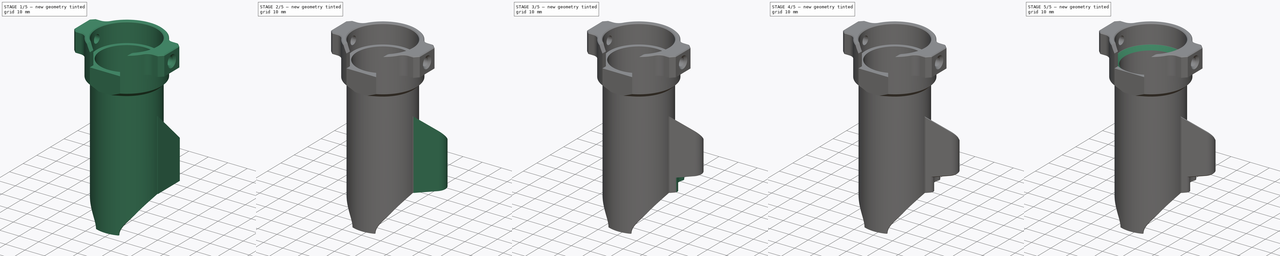
[diagram: build sequence overview — one tinted view per stage of 5, left to right]
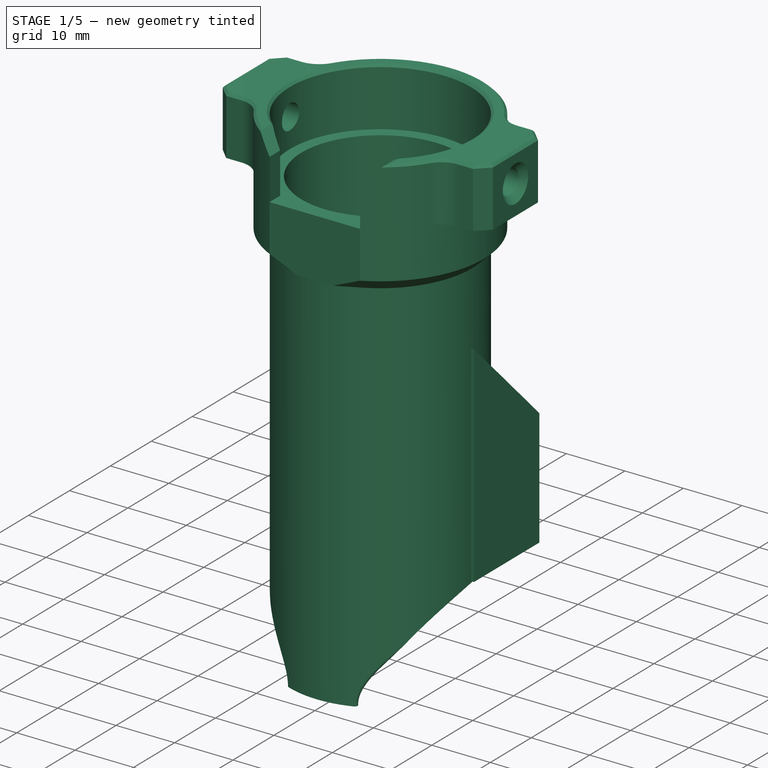
[diagram: stage 1 of 5 — iso view after this stage's code; geometry added in this stage tinted green]
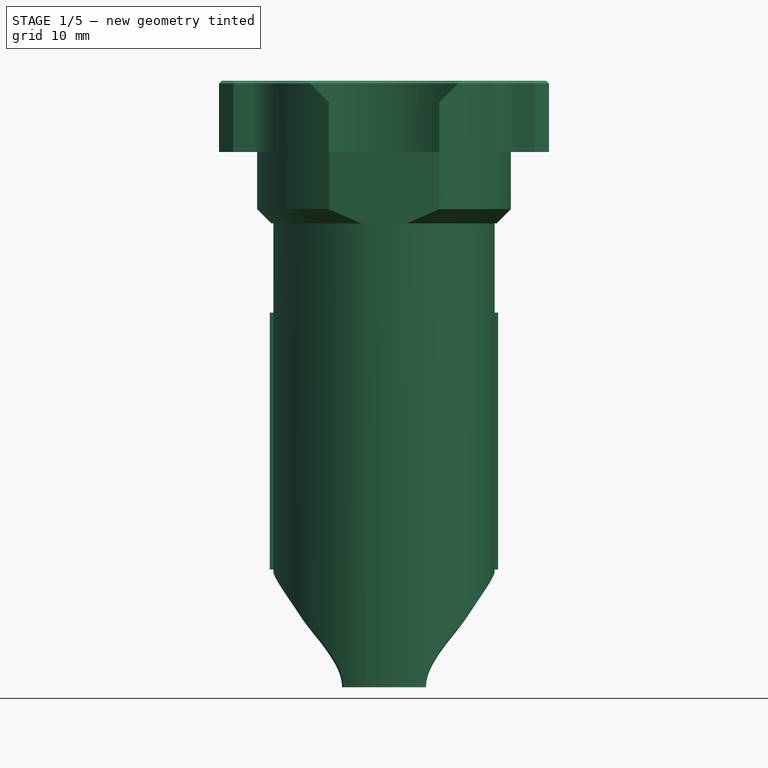
[diagram: stage 1 of 5 — front view after this stage's code; geometry added in this stage tinted green]
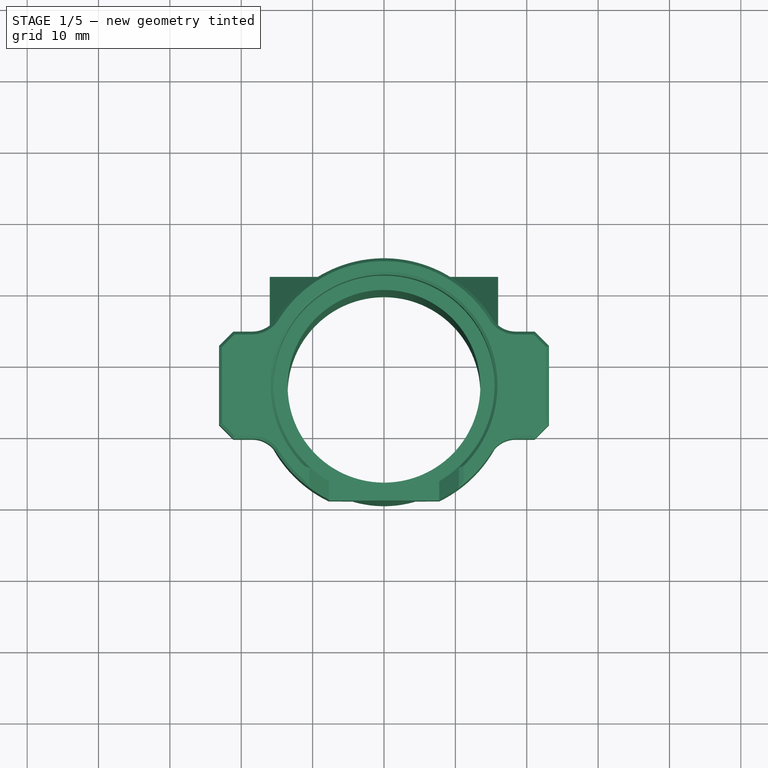
[diagram: stage 1 of 5 — top view after this stage's code; geometry added in this stage tinted green]
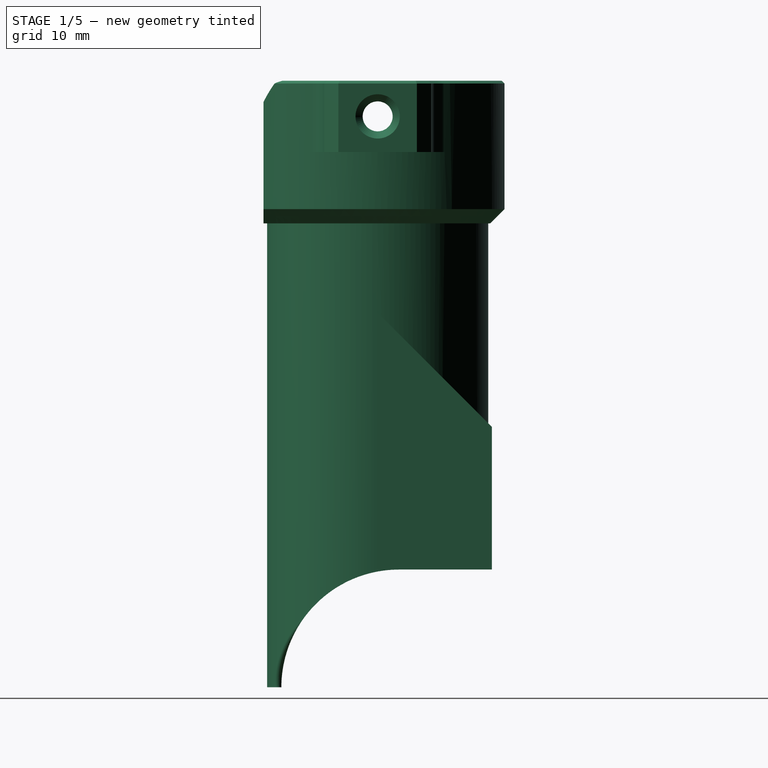
[diagram: stage 1 of 5 — right view after this stage's code; geometry added in this stage tinted green]
FCSTD DOCUMENT  (FreeCAD 2023.131R26244 +5365 (Git))
Label: ball-actuator
License: Creative Commons Attribution-NoDerivatives
LicenseURL: http://creativecommons.org/licenses/by-nd/4.0/
objects: Part::Feature×11, PartDesign::Chamfer×6, Sketcher::SketchObject×5, App::Part×3, PartDesign::Pocket×3, PartDesign::Draft×3, PartDesign::Pad×2, PartDesign::Fillet×2, PartDesign::SubShapeBinder×1, PartDesign::Mirrored×1, PartDesign::Body×1
note: 74 computed .brp shape members not serialized (recipe doc carries the construction recipe); baked Part::Feature solids carry a one-line shape summary decoded from their .brp

FEATURE [Part::Feature] Part__Feature  label="CarterVac"
  InvalidShape = false
  TreeRank = 91
  ValidateShape = true
  shape: bbox 80 x 3 x 200 mm, 74 faces (baked)
FEATURE [Part::Feature] Part__Feature001  label="TubeInterne"
  InvalidShape = false
  TreeRank = 92
  ValidateShape = true
  shape: bbox 61.94 x 98.3 x 192.5 mm, 124 faces (baked)
FEATURE [Part::Feature] Part__Feature002  label="TubeExterne"
  InvalidShape = false
  TreeRank = 93
  ValidateShape = true
  shape: bbox 60.03 x 49.48 x 124.4 mm, 102 faces (baked)
FEATURE [Part::Feature] Part__Feature003  label="TubeEntree"
  InvalidShape = false
  TreeRank = 94
  ValidateShape = true
  shape: bbox 46.24 x 35.58 x 86.23 mm, 62 faces (baked)
FEATURE [Part::Feature] Part__Feature004  label="SpacerTurbine"
  InvalidShape = false
  TreeRank = 95
  ValidateShape = true
  shape: bbox 45 x 10 x 45 mm, 41 faces (baked)
FEATURE [Part::Feature] Part__Feature005  label="CacheTurbine"
  InvalidShape = false
  TreeRank = 96
  ValidateShape = true
  shape: bbox 45 x 3 x 45 mm, 30 faces (baked)
FEATURE [Part::Feature] Part__Feature006  label="LamelleTurbine"
  InvalidShape = false
  TreeRank = 97
  ValidateShape = true
  shape: bbox 50 x 4.8 x 2.1 mm, 10 faces (baked)
FEATURE [Part::Feature] Part__Feature007  label="Trappe"
  InvalidShape = false
  Placement = pos=(0,28.35,194.28) rot=(0,0,1;0rad)
  TreeRank = 98
  ValidateShape = true
  shape: bbox 60.05 x 16.85 x 35.16 mm, 48 faces (baked)
FEATURE [Part::Feature] Part__Feature008  label="ServoArm"
  InvalidShape = false
  TreeRank = 99
  ValidateShape = true
  shape: bbox 4 x 21.5 x 6.9 mm, 11 faces (baked)
FEATURE [Part::Feature] Part__Feature009  label="BigServoArm"
  InvalidShape = false
  TreeRank = 100
  ValidateShape = true
  shape: bbox 4 x 30.59 x 10.9 mm, 28 faces (baked)
FEATURE [Part::Feature] Part__Feature010  label="ArmLink"
  InvalidShape = false
  Placement = pos=(5.3e-15,21.65,6.0174e-12) rot=(-1,0,0;1.39626rad)
  TreeRank = 101
  ValidateShape = true
  shape: bbox 3 x 12.56 x 38.51 mm, 11 faces (baked)
FEATURE [App::Part] EnsembleServoArm
  ClaimAllChildren = false
  ExportMode = 1
  Group = -> [Part__Feature008,Part__Feature009,Part__Feature010]
  Origin = -> Origin003
  Placement = pos=(15.7,12.1227,220.996) rot=(0,0,1;0rad)
  TreeRank = 103
  _ExportChildren = -> [Part__Feature008,Part__Feature009,Part__Feature010]
  _GroupVersion = 1
FEATURE [App::Part] EnsembleServo
  ClaimAllChildren = false
  ExportMode = 1
  Group = -> [EnsembleServoArm]
  Origin = -> Origin004
  Placement = pos=(-7.4,-2.86102e-07,-2.84e-14) rot=(0,0,1;0rad)
  TreeRank = 105
  _ExportChildren = -> [EnsembleServoArm]
  _GroupVersion = 1
FEATURE [PartDesign::SubShapeBinder] BaseFeature  label="BaseFeature(TubeEntree)"
  BindCopyOnChange = 0
  BindMode = 0
  ClaimChildren = false
  Context = -> BallActionneur [Body.BaseFeature.]
  EdgeTolerance = 1e-06
  FillStyle = 0
  Fuse = true
  InvalidShape = false
  MakeFace = true
  MergeEdges = true
  OffsetFill = false
  OffsetIntersection = false
  OffsetJoinType = 0
  OffsetOpenResult = false
  Outline = false
  PartialLoad = false
  Relative = true
  SplitEdges = false
  Support = -> [Part__Feature003]
  TightBound = false
  TreeRank = 143
  ValidateShape = true
  _Version = 8
FEATURE [Sketcher::SketchObject] Sketch
  ArcFitTolerance = 1e-06
  AttachmentSupport = -> [YZ_Plane]
  ExternalBSplineMaxDegree = 5
  ExternalBSplineTolerance = 0.0001
  ExternalGeometry = -> [BaseFeature]
  FullyConstrained = true
  InternalTolerance = 1e-06
  InvalidShape = false
  MakeInternals = true
  MapMode = 5
  Placement = pos=(0,0,0) rot=(0.57735,0.57735,0.57735;2.0944rad)
  Support = -> [YZ_Plane]
  TreeRank = 144
  ValidateShape = true
  sketch-geometry (8):
    g0: LineSegment [constr] StartX=-1.4508e-12 StartY=52.5 StartZ=0 EndX=33 EndY=52.5 EndZ=0
    g1: LineSegment StartX=33 StartY=52.5 StartZ=0 EndX=33 EndY=22.5 EndZ=0
    g2: LineSegment StartX=33 StartY=22.5 StartZ=0 EndX=-1.4495e-12 EndY=22.5 EndZ=0
    g3: LineSegment [constr] StartX=-1.4508e-12 StartY=22.5 StartZ=0 EndX=-1.4508e-12 EndY=52.5 EndZ=0
    g4: LineSegment StartX=33 StartY=52.5 StartZ=0 EndX=19 EndY=52.5 EndZ=0
    g5: ArcOfCircle CenterX=19 CenterY=36 CenterZ=0 NormalX=0 NormalY=0 NormalZ=1 AngleXU=0 Radius=16.5 StartAngle=1.5708 EndAngle=3.14159
    g6: LineSegment StartX=2.5 StartY=36 StartZ=0 EndX=8.966e-13 EndY=36 EndZ=0
    g7: LineSegment StartX=8.966e-13 StartY=36 StartZ=0 EndX=-1.4508e-12 EndY=22.5 EndZ=0
  constraints (22):
    c: Coincident(g0,g1)
    c: Coincident(g1,g2)
    c: Coincident(g2,g3)
    c: Coincident(g3,g0)
    c: Horizontal(g0)
    c: Horizontal(g2)
    c: Vertical(g1)
    c: Vertical(g3)
    c: PointOnObject(g0,g-2)
    c: DistanceY(g-1,g0) = 52.5
    c: DistanceX(g1) = 33
    c: DistanceY(g1,g1) = 30
    c: Coincident(g4,g1)
    c: PointOnObject(g4,g0)
    c: Tangent(g5,g4) = -1.5708
    c: Coincident(g6,g5)
    c: PointOnObject(g6,g3)
    c: Coincident(g7,g6)
    c: Coincident(g7,g2)
    c: Horizontal(g6)
    c: Perpendicular(g5,g6)
    c: Coincident(g-3,g5)
FEATURE [PartDesign::Pocket] Pocket
  AddSubType = 1
  AutoTaperInnerAngle = true
  BaseFeature = -> BaseFeature
  CheckUpToFaceLimits = true
  ClaimChildren = false
  Fit = 0
  FitJoin = 0
  InnerFit = 0
  InnerFitJoin = 0
  InvalidShape = false
  Length = 5
  Length2 = 100
  Linearize = true
  Midplane = true
  NewSolid = false
  Profile = -> Sketch
  Refine = true
  Suppress = false
  TaperInnerAngle = 0
  TaperInnerAngleRev = 0
  TreeRank = 145
  Type = 1
  ValidateShape = true
  _ProfileBasedVersion = 1
  _Version = 1
FEATURE [Sketcher::SketchObject] Sketch001
  ArcFitTolerance = 1e-06
  AttachmentSupport = -> [Pocket]
  ExternalBSplineMaxDegree = 5
  ExternalBSplineTolerance = 0.0001
  ExternalGeometry = -> [Pocket]
  FullyConstrained = true
  InternalTolerance = 1e-06
  InvalidShape = false
  MakeInternals = true
  MapMode = 5
  Placement = pos=(-1.46e-14,-4.4648e-12,52.5) rot=(1,0,0;3.14159rad)
  Support = -> [Pocket]
  TreeRank = 146
  ValidateShape = true
  sketch-geometry (8):
    g0: LineSegment StartX=-15 StartY=-16 StartZ=0 EndX=-16 EndY=-16 EndZ=0
    g1: LineSegment StartX=-16 StartY=-16 StartZ=0 EndX=-16 EndY=-32 EndZ=0
    g2: LineSegment StartX=-16 StartY=-32 StartZ=0 EndX=16 EndY=-32 EndZ=0
    g3: LineSegment StartX=16 StartY=-32 StartZ=0 EndX=16 EndY=-16 EndZ=0
    g4: ArcOfCircle CenterX=4.3402e-12 CenterY=-16 CenterZ=0 NormalX=0 NormalY=0 NormalZ=1 AngleXU=0 Radius=14 StartAngle=3.14159 EndAngle=6.28319
    g5: LineSegment StartX=14 StartY=-16 StartZ=0 EndX=16 EndY=-16 EndZ=0
    g6: LineSegment StartX=-15 StartY=-16 StartZ=0 EndX=-14 EndY=-16 EndZ=0
    g7: GeomPoint [constr] X=0 Y=-31.5 Z=0
  constraints (22):
    c: Horizontal(g0)
    c: Coincident(g1,g0)
    c: Vertical(g1)
    c: Coincident(g2,g1)
    c: Horizontal(g2)
    c: Coincident(g3,g2)
    c: Vertical(g3)
    c: Symmetric(g3,g0,g-2)
    c: Coincident(g5,g4)
    c: Horizontal(g5)
    c: Coincident(g6,g0)
    c: Coincident(g6,g4)
    c: Horizontal(g6)
    c: DistanceX(g6,g6) = 1
    c: Coincident(g5,g3)
    c: PointOnObject(g7,g-2)
    c: DistanceY(g2,g7) = 0.5
    c: Horizontal(g4,g4)
    c: PointOnObject(g7,g-3)
    c: Coincident(g-3,g4)
    c: DistanceX(g5,g5) = 2
    c: DistanceX(g0,g3) = 32
FEATURE [PartDesign::Pad] Pad
  AddSubType = 0
  AlongSketchNormal = false
  AutoTaperInnerAngle = true
  BaseFeature = -> Pocket
  CheckUpToFaceLimits = true
  ClaimChildren = false
  Direction = (3e-16,8.5e-14,-1)
  Fit = 0
  FitJoin = 0
  InnerFit = 0
  InnerFitJoin = 0
  InvalidShape = false
  Length = 20
  Length2 = 100
  Linearize = true
  NewSolid = false
  Profile = -> Sketch001
  Refine = true
  Reversed = true
  Suppress = false
  TaperInnerAngle = 0
  TaperInnerAngleRev = 0
  TreeRank = 147
  Type = 0
  ValidateShape = true
  _ProfileBasedVersion = 1
FEATURE [PartDesign::Draft] Draft
  AddSubType = 0
  Angle = 45
  Base = -> Pad [Face63]
  BaseFeature = -> Pad
  InvalidShape = false
  NeutralPlane = -> Pad [Face69]
  NewSolid = false
  Refine = true
  SupportTransform = false
  Suppress = false
  TreeRank = 148
  ValidateShape = true
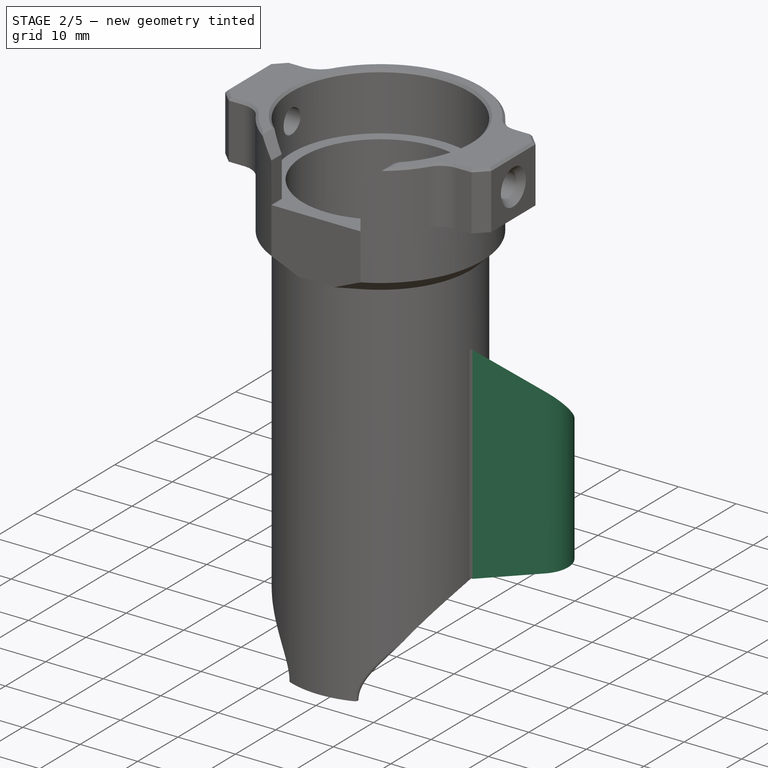
[diagram: stage 2 of 5 — iso view after this stage's code; geometry added in this stage tinted green]
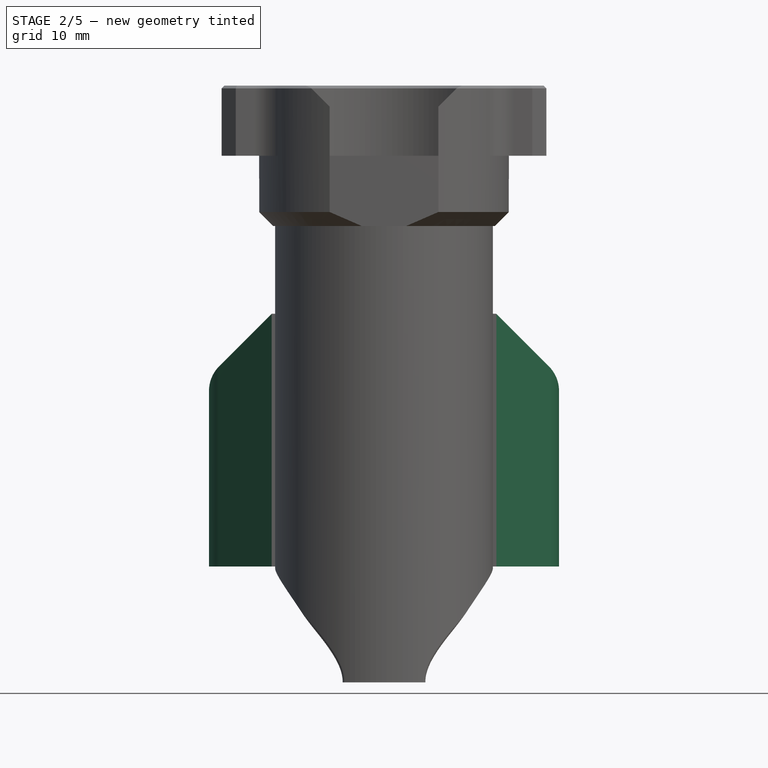
[diagram: stage 2 of 5 — front view after this stage's code; geometry added in this stage tinted green]
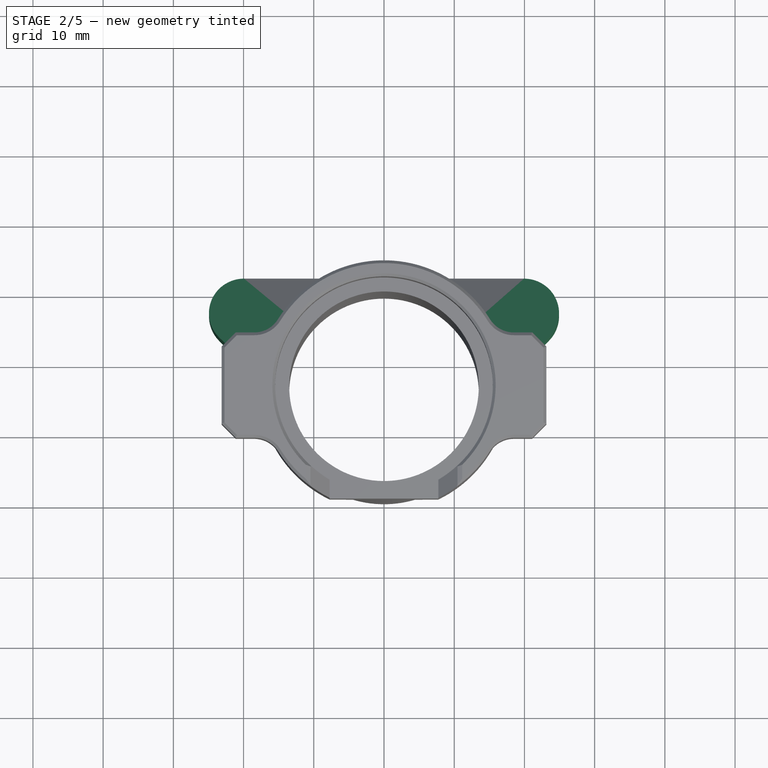
[diagram: stage 2 of 5 — top view after this stage's code; geometry added in this stage tinted green]
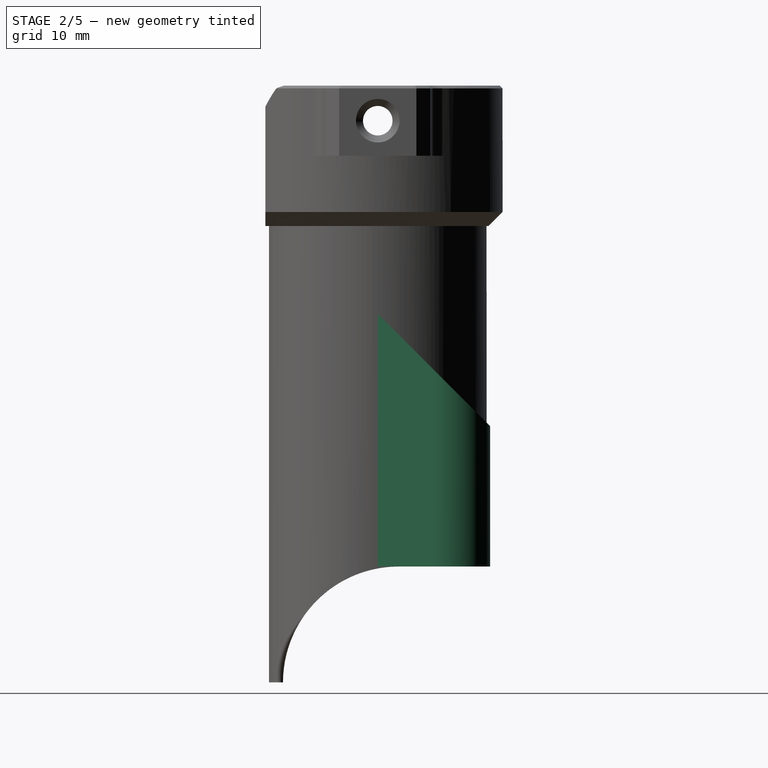
[diagram: stage 2 of 5 — right view after this stage's code; geometry added in this stage tinted green]
FEATURE [PartDesign::Draft] Draft001
  AddSubType = 0
  Angle = 45
  Base = -> Draft [Face70]
  BaseFeature = -> Draft
  InvalidShape = false
  NeutralPlane = -> Draft [Face64]
  NewSolid = false
  Refine = true
  Reversed = true
  SupportTransform = false
  Suppress = false
  TreeRank = 149
  ValidateShape = true
FEATURE [PartDesign::Draft] Draft002
  AddSubType = 0
  Angle = 45
  Base = -> Draft001 [Face68]
  BaseFeature = -> Draft001
  InvalidShape = false
  NeutralPlane = -> Draft001 [Face62]
  NewSolid = false
  Refine = true
  SupportTransform = false
  Suppress = false
  TreeRank = 150
  ValidateShape = true
FEATURE [PartDesign::Fillet] Fillet
  AddSubType = 0
  Base = -> Draft002 [Edge183,Edge182]
  BaseFeature = -> Draft002
  InvalidShape = false
  NewSolid = false
  Radius = 5
  Refine = true
  SupportTransform = false
  Suppress = false
  TreeRank = 151
  ValidateShape = true
FEATURE [Sketcher::SketchObject] Sketch002
  ArcFitTolerance = 1e-06
  AttachmentSupport = -> [Fillet]
  ExternalBSplineMaxDegree = 5
  ExternalBSplineTolerance = 0.0001
  FullyConstrained = false
  InternalTolerance = 1e-06
  InvalidShape = false
  MakeInternals = true
  MapMode = 5
  Placement = pos=(-1.68e-14,-4.404e-12,52.5) rot=(1,0,0;3.14159rad)
  Support = -> [Fillet]
  TreeRank = 152
  ValidateShape = true
  sketch-geometry (3):
    g0: Circle [constr] CenterX=19.9289 CenterY=-27 CenterZ=0 NormalX=0 NormalY=0 NormalZ=1 AngleXU=0 Radius=6.5
    g1: Circle CenterX=19.9289 CenterY=-27 CenterZ=0 NormalX=0 NormalY=0 NormalZ=1 AngleXU=0 Radius=2.2
    g2: LineSegment [constr] StartX=17.8579 StartY=-32 StartZ=0 EndX=22 EndY=-22 EndZ=0
  constraints (4):
    c: Diameter(g0) = 13
    c: Coincident(g1,g0)
    c: Diameter(g1) = 4.4
    c: Symmetric(g2,g2,g1)
FEATURE [PartDesign::Pocket] Pocket001
  AddSubType = 1
  AutoTaperInnerAngle = true
  BaseFeature = -> Fillet
  CheckUpToFaceLimits = true
  ClaimChildren = false
  Fit = 0
  FitJoin = 0
  InnerFit = 0
  InnerFitJoin = 0
  InvalidShape = false
  Length = 20
  Length2 = 100
  Linearize = true
  NewSolid = false
  Profile = -> Sketch002
  Refine = true
  Suppress = false
  TaperInnerAngle = 0
  TaperInnerAngleRev = 0
  TreeRank = 153
  Type = 0
  ValidateShape = true
  _ProfileBasedVersion = 1
  _Version = 1
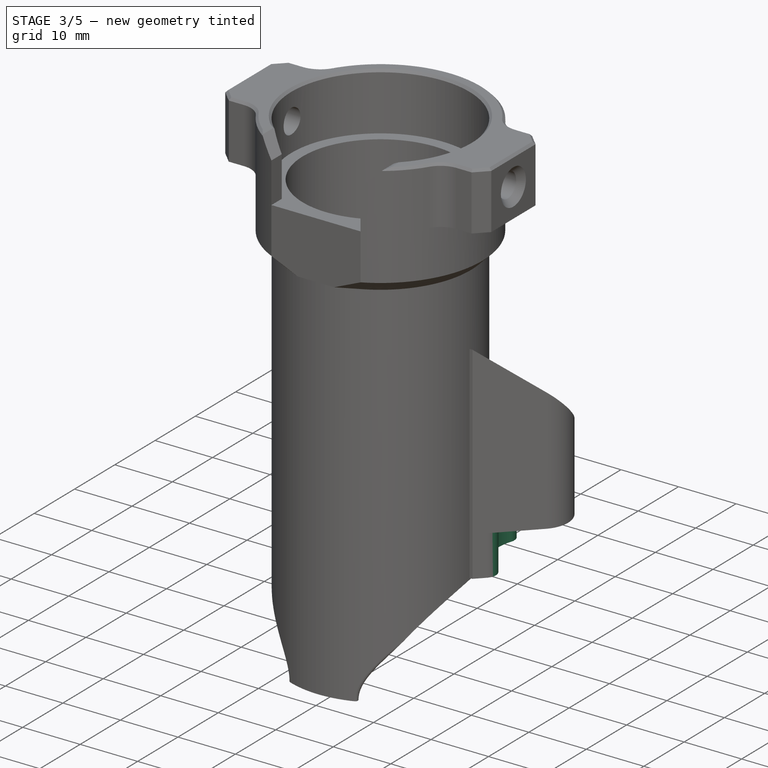
[diagram: stage 3 of 5 — iso view after this stage's code; geometry added in this stage tinted green]
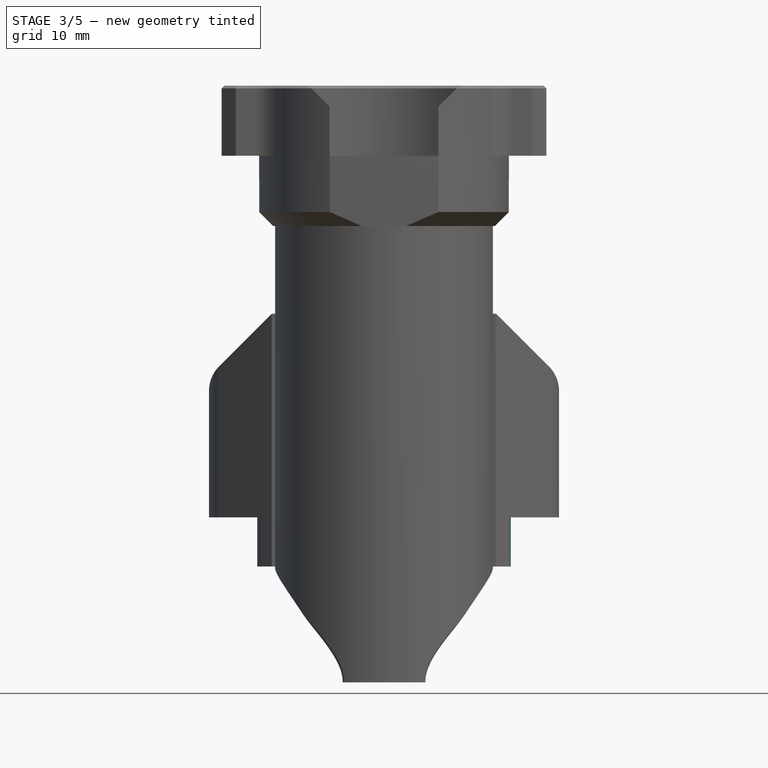
[diagram: stage 3 of 5 — front view after this stage's code; geometry added in this stage tinted green]
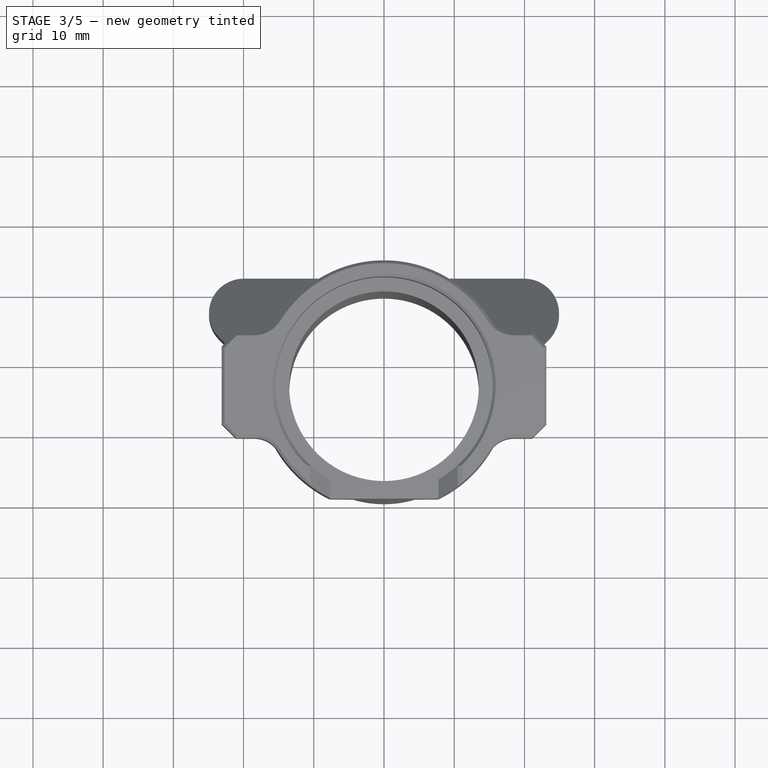
[diagram: stage 3 of 5 — top view after this stage's code; geometry added in this stage tinted green]
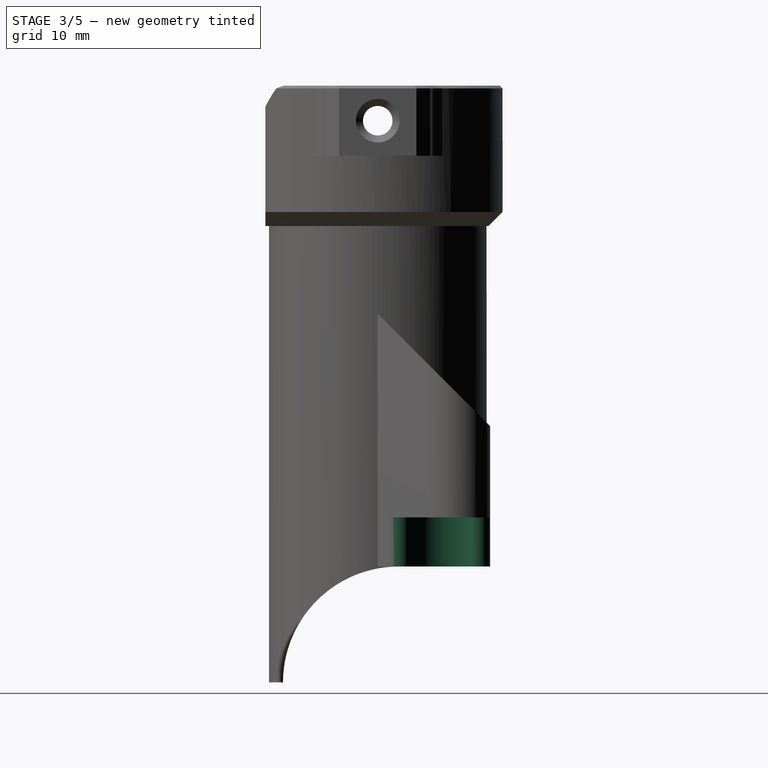
[diagram: stage 3 of 5 — right view after this stage's code; geometry added in this stage tinted green]
FEATURE [Sketcher::SketchObject] Sketch003
  ArcFitTolerance = 1e-06
  AttachmentSupport = -> [Pocket001]
  ExternalBSplineMaxDegree = 5
  ExternalBSplineTolerance = 0.0001
  ExternalGeometry = -> [Pocket001]
  FullyConstrained = true
  InternalTolerance = 1e-06
  InvalidShape = false
  MakeInternals = true
  MapMode = 5
  Placement = pos=(-1.68e-14,-4.404e-12,52.5) rot=(1,0,0;3.14159rad)
  Support = -> [Pocket001]
  TreeRank = 154
  ValidateShape = true
  sketch-geometry (1):
    g0: Circle CenterX=19.9289 CenterY=-27 CenterZ=0 NormalX=0 NormalY=0 NormalZ=1 AngleXU=0 Radius=7
  constraints (2):
    c: Diameter(g0) = 14
    c: Coincident(g0,g-3)
FEATURE [PartDesign::Pocket] Pocket002
  AddSubType = 1
  AutoTaperInnerAngle = true
  BaseFeature = -> Pocket001
  CheckUpToFaceLimits = true
  ClaimChildren = false
  Fit = 0
  FitJoin = 0
  InnerFit = 0
  InnerFitJoin = 0
  InvalidShape = false
  Length = 7
  Length2 = 100
  Linearize = true
  NewSolid = false
  Profile = -> Sketch003
  Refine = true
  Suppress = false
  TaperInnerAngle = 0
  TaperInnerAngleRev = 0
  TreeRank = 155
  Type = 0
  ValidateShape = true
  _ProfileBasedVersion = 1
  _Version = 1
FEATURE [PartDesign::Mirrored] Mirrored
  AddSubType = 0
  BaseFeature = -> Pocket002
  CopyShape = false
  InvalidShape = false
  MirrorPlane = -> Sketch002 [V_Axis]
  NewSolid = false
  OriginalSubs = -> [Pocket001,Pocket002]
  Originals = -> [Pocket001,Pocket002]
  ParallelTransform = true
  Refine = true
  SubTransform = true
  Suppress = false
  TreeRank = 156
  ValidateShape = true
  _Version = 3
FEATURE [PartDesign::Fillet] Fillet001
  AddSubType = 0
  Base = -> Mirrored [Edge19,Edge40,Edge23,Edge10]
  BaseFeature = -> Mirrored
  InvalidShape = false
  NewSolid = false
  Radius = 2
  Refine = true
  SupportTransform = false
  Suppress = false
  TreeRank = 157
  ValidateShape = true
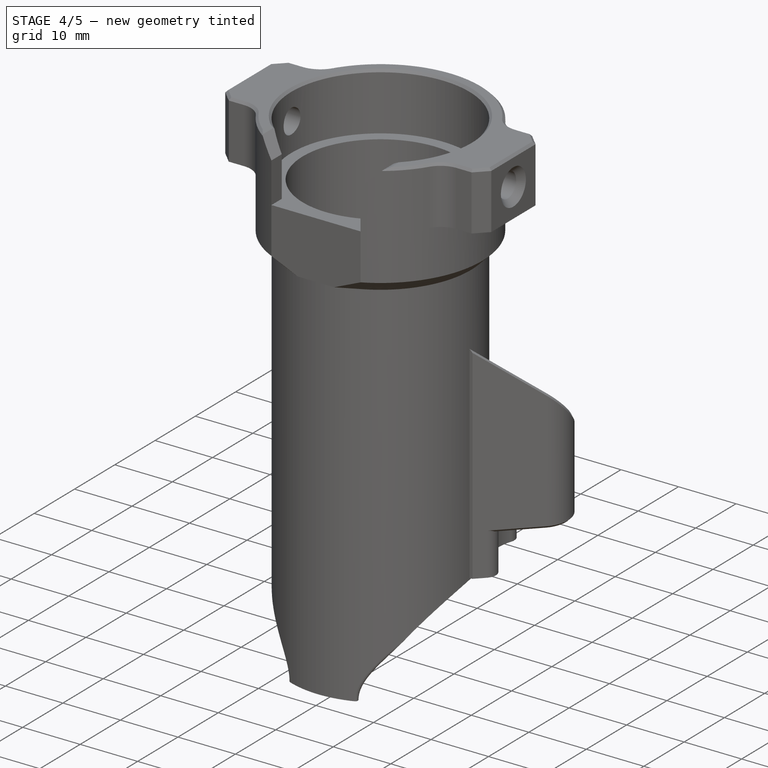
[diagram: stage 4 of 5 — iso view after this stage's code; geometry added in this stage tinted green]
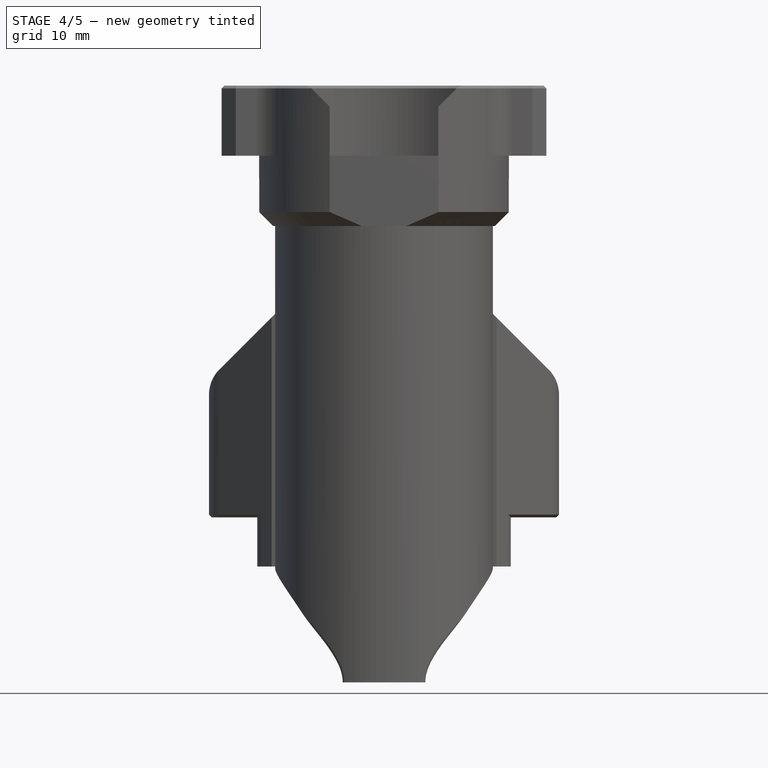
[diagram: stage 4 of 5 — front view after this stage's code; geometry added in this stage tinted green]
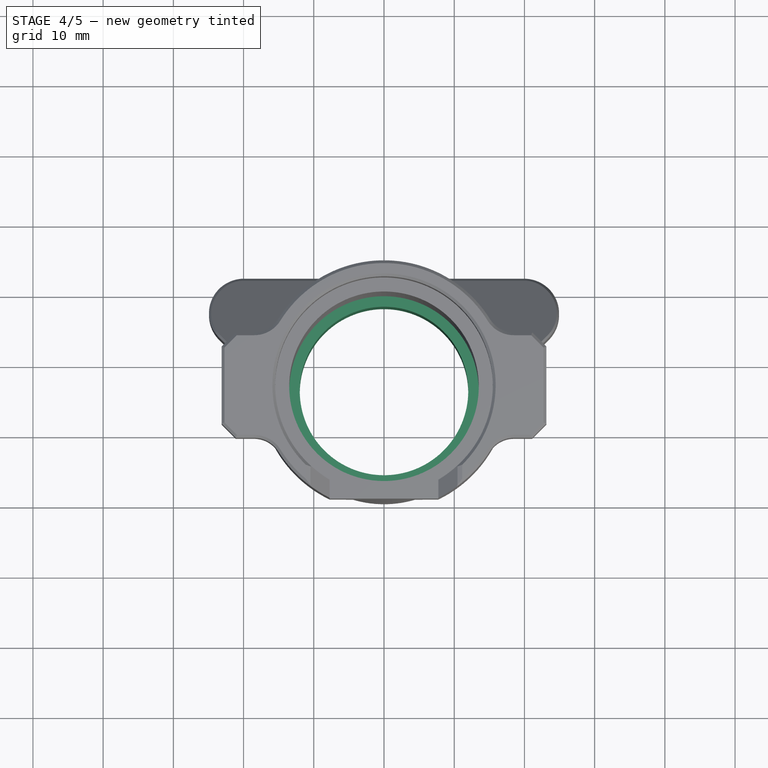
[diagram: stage 4 of 5 — top view after this stage's code; geometry added in this stage tinted green]
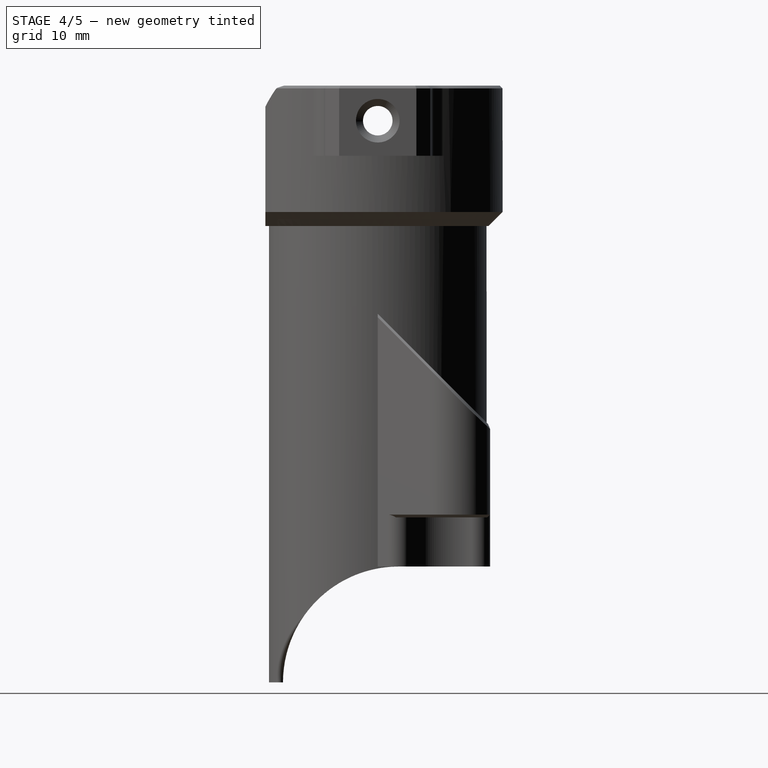
[diagram: stage 4 of 5 — right view after this stage's code; geometry added in this stage tinted green]
FEATURE [PartDesign::Chamfer] Chamfer
  AddSubType = 0
  Angle = 45
  Base = -> Fillet001 [Edge78,Edge32]
  BaseFeature = -> Fillet001
  ChamferType = 0
  FlipDirection = false
  InvalidShape = false
  NewSolid = false
  Refine = true
  Size = 0.5
  Size2 = 1
  SupportTransform = false
  Suppress = false
  TreeRank = 158
  ValidateShape = true
FEATURE [PartDesign::Chamfer] Chamfer001
  AddSubType = 0
  Angle = 45
  Base = -> Chamfer [Edge21]
  BaseFeature = -> Chamfer
  ChamferType = 0
  FlipDirection = false
  InvalidShape = false
  NewSolid = false
  Refine = true
  Size = 0.4
  Size2 = 1
  SupportTransform = false
  Suppress = false
  TreeRank = 159
  ValidateShape = true
FEATURE [PartDesign::Chamfer] Chamfer002
  AddSubType = 0
  Angle = 45
  Base = -> Chamfer001 [Edge94,Edge29]
  BaseFeature = -> Chamfer001
  ChamferType = 0
  FlipDirection = false
  InvalidShape = false
  NewSolid = false
  Refine = true
  Size = 0.4
  Size2 = 1
  SupportTransform = false
  Suppress = false
  TreeRank = 160
  ValidateShape = true
FEATURE [Sketcher::SketchObject] Sketch004
  ArcFitTolerance = 1e-06
  AttachmentSupport = -> [Chamfer002]
  ExternalBSplineMaxDegree = 5
  ExternalBSplineTolerance = 0.0001
  ExternalGeometry = -> [Chamfer002]
  FullyConstrained = true
  InternalTolerance = 1e-06
  InvalidShape = false
  MakeInternals = true
  MapMode = 5
  Placement = pos=(-1.68e-14,-4.404e-12,52.5) rot=(1,0,0;3.14159rad)
  Support = -> [Chamfer002]
  TreeRank = 161
  ValidateShape = true
  sketch-geometry (2):
    g0: Circle CenterX=9.2e-15 CenterY=-16 CenterZ=0 NormalX=0 NormalY=0 NormalZ=1 AngleXU=0 Radius=12
    g1: Circle CenterX=9.2e-15 CenterY=-16 CenterZ=0 NormalX=0 NormalY=0 NormalZ=1 AngleXU=0 Radius=14
  constraints (4):
    c: Coincident(g0,g-3)
    c: Diameter(g0) = 24
    c: Coincident(g1,g0)
    c: Diameter(g1) = 28
FEATURE [PartDesign::Pad] Pad001
  AddSubType = 0
  AlongSketchNormal = false
  AutoTaperInnerAngle = true
  BaseFeature = -> Chamfer002
  CheckUpToFaceLimits = true
  ClaimChildren = false
  Direction = (3e-16,8.39e-14,-1)
  Fit = 0
  FitJoin = 0
  InnerFit = 0
  InnerFitJoin = 0
  InvalidShape = false
  Length = 20
  Length2 = 100
  Linearize = true
  NewSolid = false
  Profile = -> Sketch004
  Refine = true
  Reversed = true
  Suppress = false
  TaperInnerAngle = 0
  TaperInnerAngleRev = 0
  TreeRank = 162
  Type = 0
  ValidateShape = true
  _ProfileBasedVersion = 1
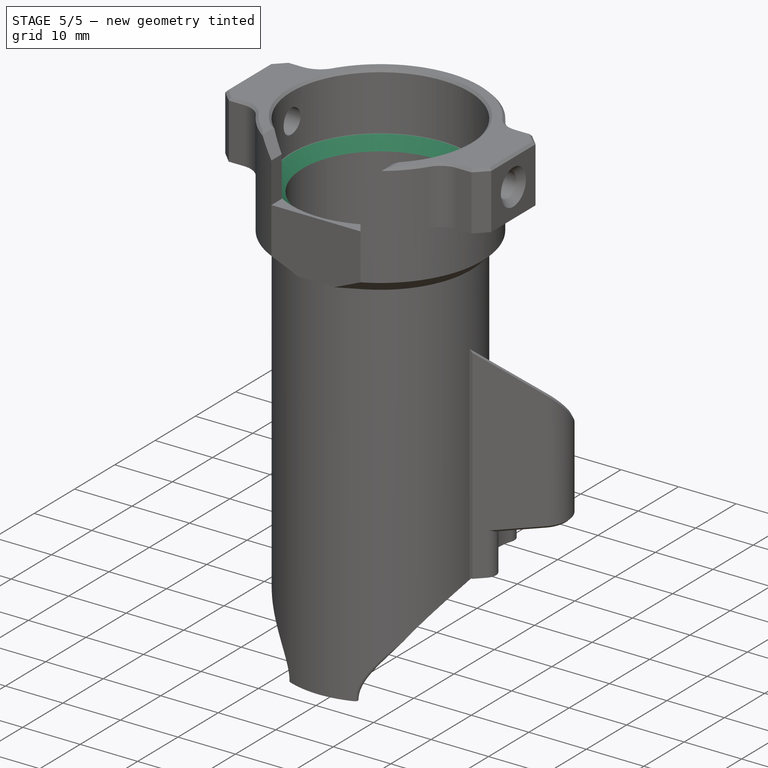
[diagram: stage 5 of 5 — iso view after this stage's code; geometry added in this stage tinted green]
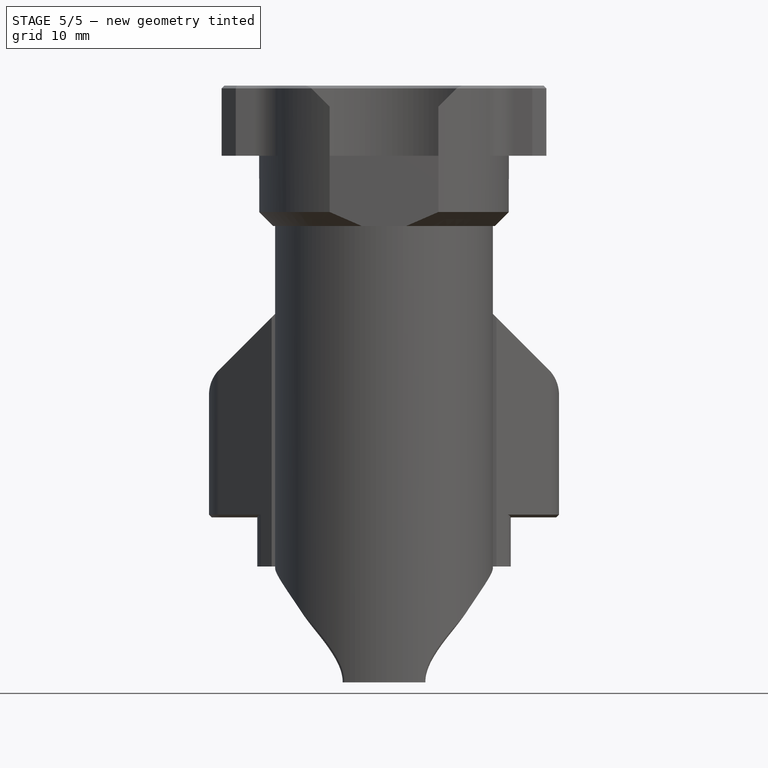
[diagram: stage 5 of 5 — front view after this stage's code; geometry added in this stage tinted green]
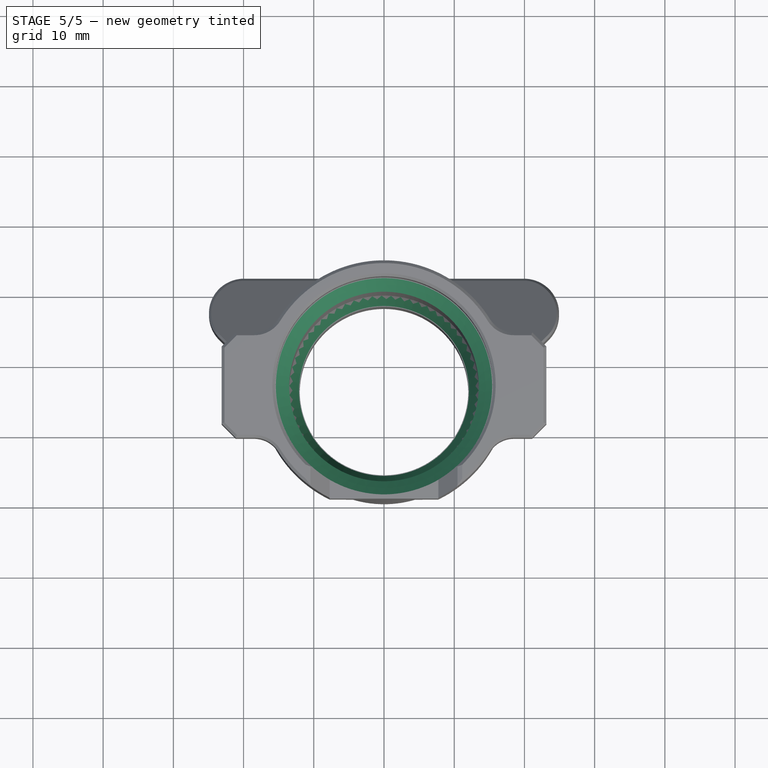
[diagram: stage 5 of 5 — top view after this stage's code; geometry added in this stage tinted green]
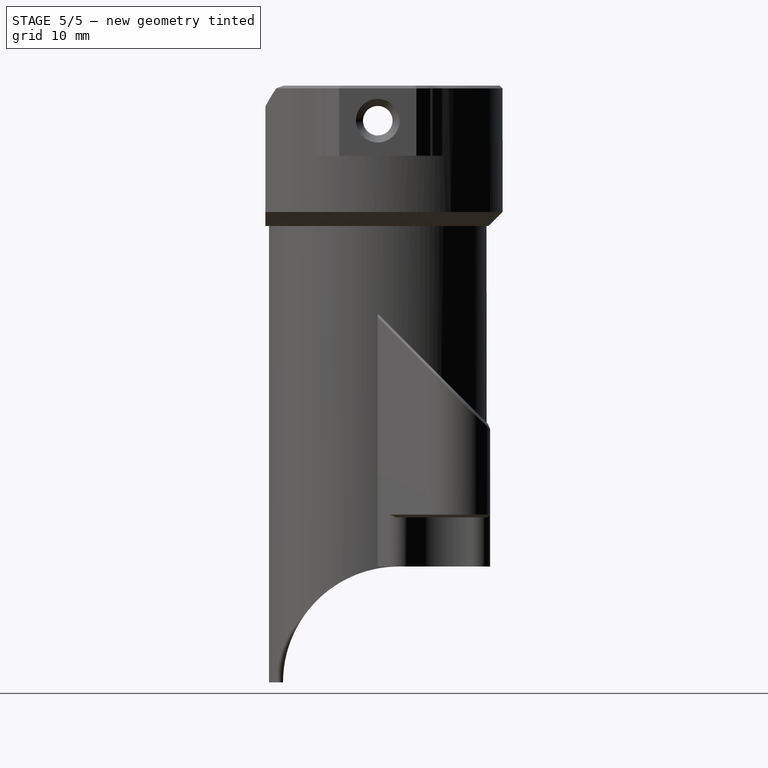
[diagram: stage 5 of 5 — right view after this stage's code; geometry added in this stage tinted green]
FEATURE [PartDesign::Chamfer] Chamfer003
  AddSubType = 0
  Angle = 45
  Base = -> Pad001 [Edge4]
  BaseFeature = -> Pad001
  ChamferType = 1
  FlipDirection = false
  InvalidShape = false
  NewSolid = false
  Refine = true
  Size = 1.4
  Size2 = 5
  SupportTransform = false
  Suppress = false
  TreeRank = 163
  ValidateShape = true
FEATURE [PartDesign::Chamfer] Chamfer004
  AddSubType = 0
  Angle = 45
  Base = -> Chamfer003 [Edge6]
  BaseFeature = -> Chamfer003
  ChamferType = 0
  FlipDirection = false
  InvalidShape = false
  NewSolid = false
  Refine = true
  Size = 1.4
  Size2 = 1
  SupportTransform = false
  Suppress = false
  TreeRank = 164
  ValidateShape = true
FEATURE [PartDesign::Chamfer] Chamfer005
  AddSubType = 0
  Angle = 45
  Base = -> Chamfer004 [Edge81]
  BaseFeature = -> Chamfer004
  ChamferType = 0
  FlipDirection = false
  InvalidShape = false
  NewSolid = false
  Refine = true
  Size = 1.9
  Size2 = 1
  SupportTransform = false
  Suppress = false
  TreeRank = 165
  ValidateShape = true
FEATURE [PartDesign::Body] Body  label="TubeEntree2"
  AutoGroupSolids = false
  BaseFeature = -> BaseFeature
  ClaimAllChildren = false
  ExportMode = 0
  FixShape = 1
  Group = -> [BaseFeature,Sketch,Pocket,Sketch001,Pad,Draft,Draft001,Draft002,Fillet,Sketch002,Pocket001,Sketch003,Pocket002,Mirrored,Fillet001,Chamfer,Chamfer001,Chamfer002,Sketch004,Pad001,Chamfer003,Chamfer004,Chamfer005]
  InvalidShape = false
  Origin = -> Origin
  SingleSolid = true
  Tip = -> Chamfer005
  TreeRank = 142
  ValidateShape = true
  _ExportChildren = -> [BaseFeature,Pocket,Pad,Draft,Draft001,Draft002,Fillet,Pocket001,Pocket002,Mirrored,Fillet001,Chamfer,Chamfer001,Chamfer002,Pad001,Chamfer003,Chamfer004,Chamfer005]
  _GroupVersion = 1
FEATURE [App::Part] BallActionneur
  ClaimAllChildren = false
  ExportMode = 1
  Group = -> [Part__Feature,Part__Feature001,Part__Feature002,Part__Feature003,Part__Feature004,Part__Feature005,Part__Feature006,Part__Feature007,EnsembleServo,Body]
  Origin = -> Origin005
  TreeRank = 132
  _ExportChildren = -> [Part__Feature,Part__Feature001,Part__Feature002,Part__Feature003,Part__Feature004,Part__Feature005,Part__Feature006,Part__Feature007,EnsembleServo,Body]
  _GroupVersion = 1
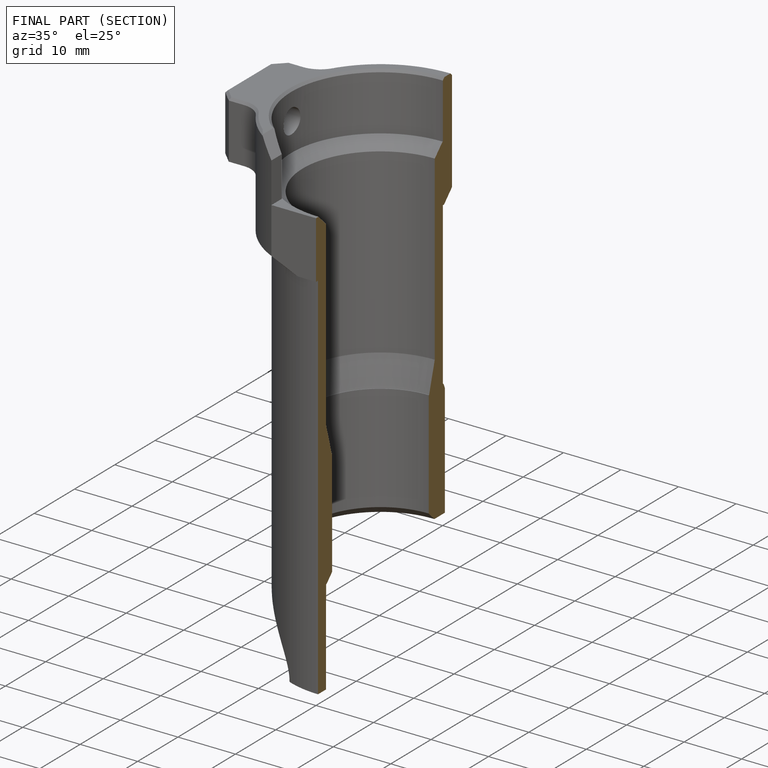
[diagram: finished part — half-section view (interior)]
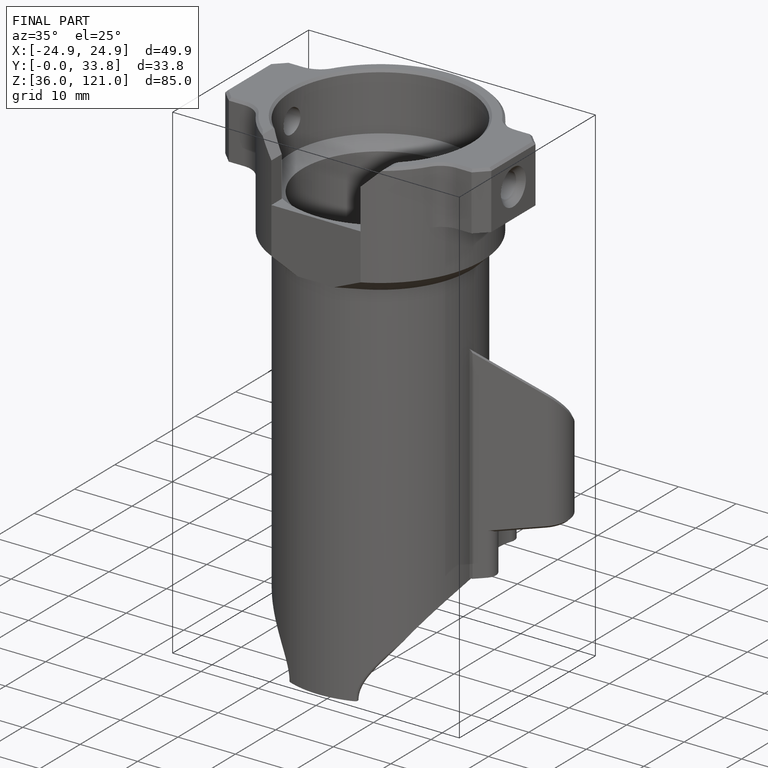
[diagram: finished part — iso view with bounding-box wireframe]
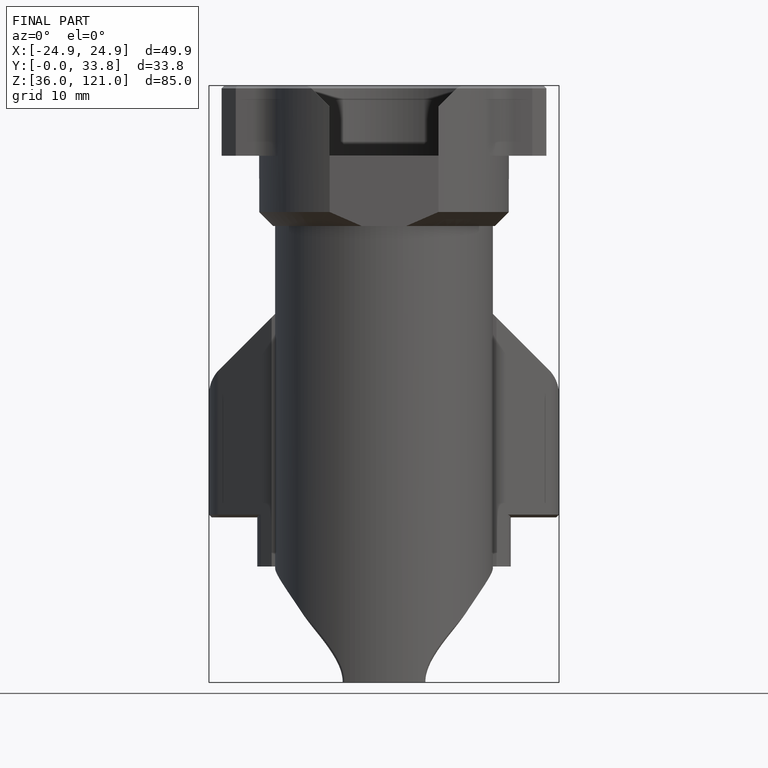
[diagram: finished part — front view with bounding-box wireframe]
